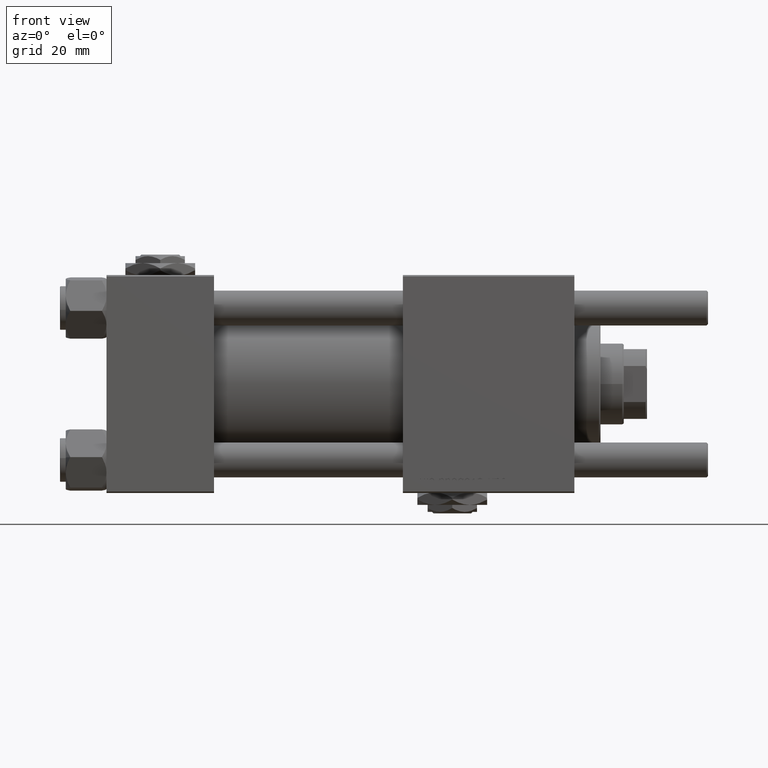
[diagram: clean part render]
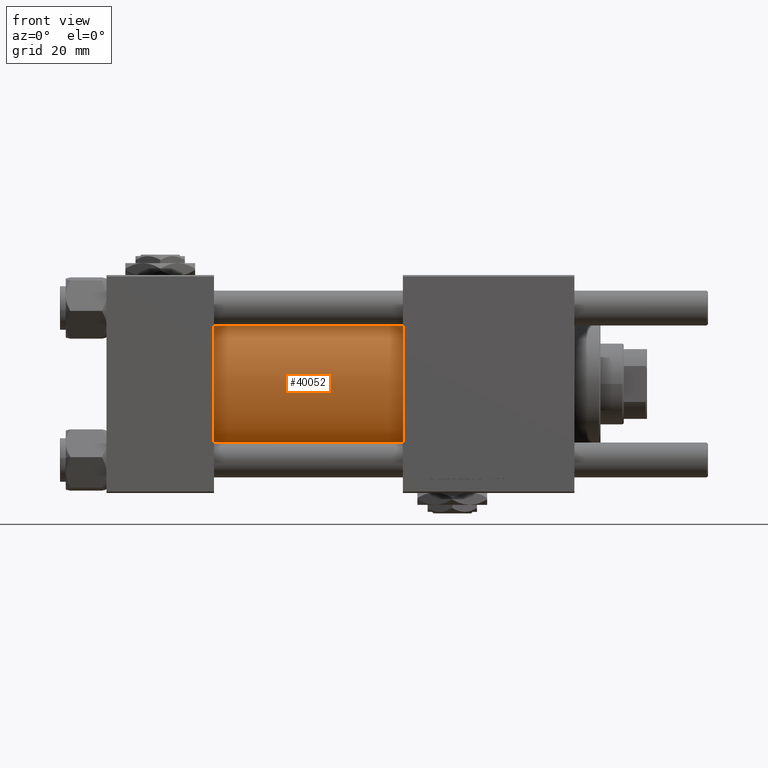
[diagram: same view with one face highlighted and labeled with its STEP entity id]
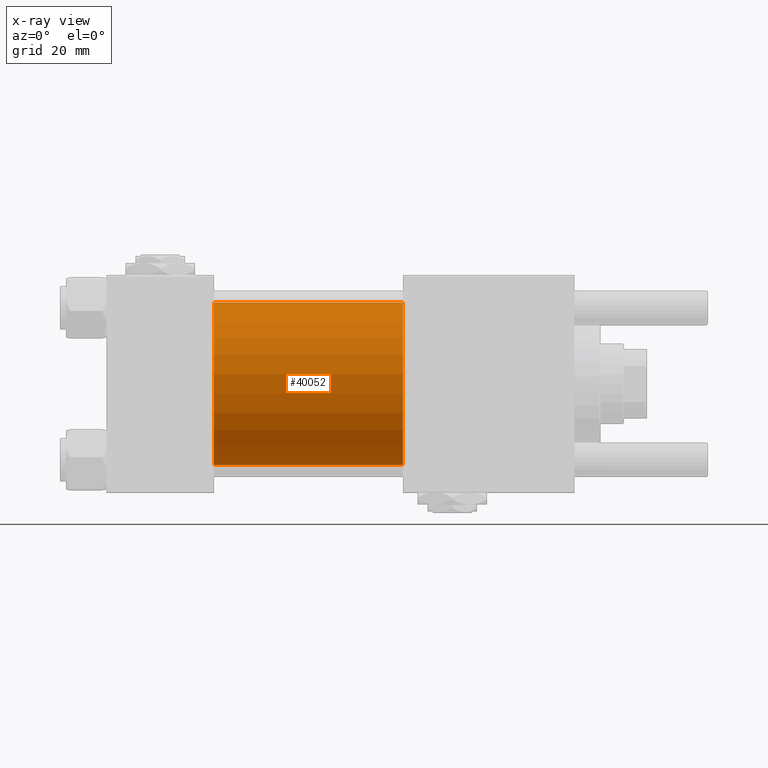
[diagram: x-ray of the same camera — body ghosted, the highlighted face saturated]
A machine part, front view. The second image highlights one B-rep face of the part: STEP entity #40052.
The next image is the same camera in x-ray: the body ghosted, the highlighted face saturated — about 2% of this face is hidden behind the body in this view.
In plain terms, the highlighted cylindrical surface (partial cylindrical patch) has radius 28 mm, axis along (-1, -0, -0).
Its self-contained STEP definition (entity closure, byte-faithful):
#123 = AXIS2_PLACEMENT_3D ( 'NONE', #52239, #11555, #29101 ) ;
#335 = ORIENTED_EDGE ( 'NONE', *, *, #21672, .F. ) ;
#2545 = EDGE_CURVE ( 'NONE', #11467, #35246, #31101, .T. ) ;
#3841 = CYLINDRICAL_SURFACE ( 'NONE', #16033, 28.00000000000000000 ) ;
#5331 = CARTESIAN_POINT ( 'NONE',  ( 102.0000000000000142, -2.602085213965210642E-15, 0.000000000000000000 ) ) ;
#5610 = DIRECTION ( 'NONE',  ( -1.000000000000000000, -0.000000000000000000, -0.000000000000000000 ) ) ;
#6232 = CARTESIAN_POINT ( 'NONE',  ( 102.0000000000000142, 8.269258236473784371E-16, -28.00000000000000000 ) ) ;
#6440 = DIRECTION ( 'NONE',  ( 1.000000000000000000, 0.000000000000000000, 0.000000000000000000 ) ) ;
#6823 = VECTOR ( 'NONE', #35562, 1000.000000000000000 ) ;
#9653 = VERTEX_POINT ( 'NONE', #19017 ) ;
#11467 = VERTEX_POINT ( 'NONE', #43277 ) ;
#11555 = DIRECTION ( 'NONE',  ( 1.000000000000000000, -0.000000000000000000, 0.000000000000000000 ) ) ;
#11898 = EDGE_CURVE ( 'NONE', #35246, #9653, #39951, .T. ) ;
#16033 = AXIS2_PLACEMENT_3D ( 'NONE', #5331, #5610, #27585 ) ;
#16646 = DIRECTION ( 'NONE',  ( -1.000000000000000000, -0.000000000000000000, -0.000000000000000000 ) ) ;
#16833 = ORIENTED_EDGE ( 'NONE', *, *, #11898, .T. ) ;
#19017 = CARTESIAN_POINT ( 'NONE',  ( 37.00000000000000711, 8.269258236473784371E-16, -28.00000000000000000 ) ) ;
#21672 = EDGE_CURVE ( 'NONE', #34023, #9653, #24961, .T. ) ;
#23956 = CARTESIAN_POINT ( 'NONE',  ( 102.0000000000000142, -2.602085213965210642E-15, 0.000000000000000000 ) ) ;
#24961 = LINE ( 'NONE', #43111, #44046 ) ;
#25744 = CARTESIAN_POINT ( 'NONE',  ( 102.0000000000000142, -2.602085213965210642E-15, 28.00000000000000000 ) ) ;
#27345 = ORIENTED_EDGE ( 'NONE', *, *, #36363, .F. ) ;
#27585 = DIRECTION ( 'NONE',  ( 0.000000000000000000, 0.000000000000000000, 1.000000000000000000 ) ) ;
#29101 = DIRECTION ( 'NONE',  ( 0.000000000000000000, 0.000000000000000000, 1.000000000000000000 ) ) ;
#29192 = CIRCLE ( 'NONE', #37759, 28.00000000000000000 ) ;
#29602 = CARTESIAN_POINT ( 'NONE',  ( 37.00000000000000711, -2.602085213965210642E-15, 28.00000000000000000 ) ) ;
#31101 = LINE ( 'NONE', #25744, #6823 ) ;
#33169 = EDGE_LOOP ( 'NONE', ( #335, #27345, #43088, #16833 ) ) ;
#34023 = VERTEX_POINT ( 'NONE', #6232 ) ;
#35246 = VERTEX_POINT ( 'NONE', #29602 ) ;
#35562 = DIRECTION ( 'NONE',  ( -1.000000000000000000, -0.000000000000000000, -0.000000000000000000 ) ) ;
#36363 = EDGE_CURVE ( 'NONE', #11467, #34023, #29192, .T. ) ;
#37759 = AXIS2_PLACEMENT_3D ( 'NONE', #23956, #6440, #42682 ) ;
#39951 = CIRCLE ( 'NONE', #123, 28.00000000000000000 ) ;
#40052 = ADVANCED_FACE ( 'NONE', ( #44549 ), #3841, .T. ) ;
#42682 = DIRECTION ( 'NONE',  ( 0.000000000000000000, 0.000000000000000000, -1.000000000000000000 ) ) ;
#43088 = ORIENTED_EDGE ( 'NONE', *, *, #2545, .T. ) ;
#43111 = CARTESIAN_POINT ( 'NONE',  ( 102.0000000000000142, 8.269258236473784371E-16, -28.00000000000000000 ) ) ;
#43277 = CARTESIAN_POINT ( 'NONE',  ( 102.0000000000000142, -2.602085213965210642E-15, 28.00000000000000000 ) ) ;
#44046 = VECTOR ( 'NONE', #16646, 1000.000000000000000 ) ;
#44549 = FACE_OUTER_BOUND ( 'NONE', #33169, .T. ) ;
#52239 = CARTESIAN_POINT ( 'NONE',  ( 37.00000000000000711, -2.602085213965210642E-15, 0.000000000000000000 ) ) ;